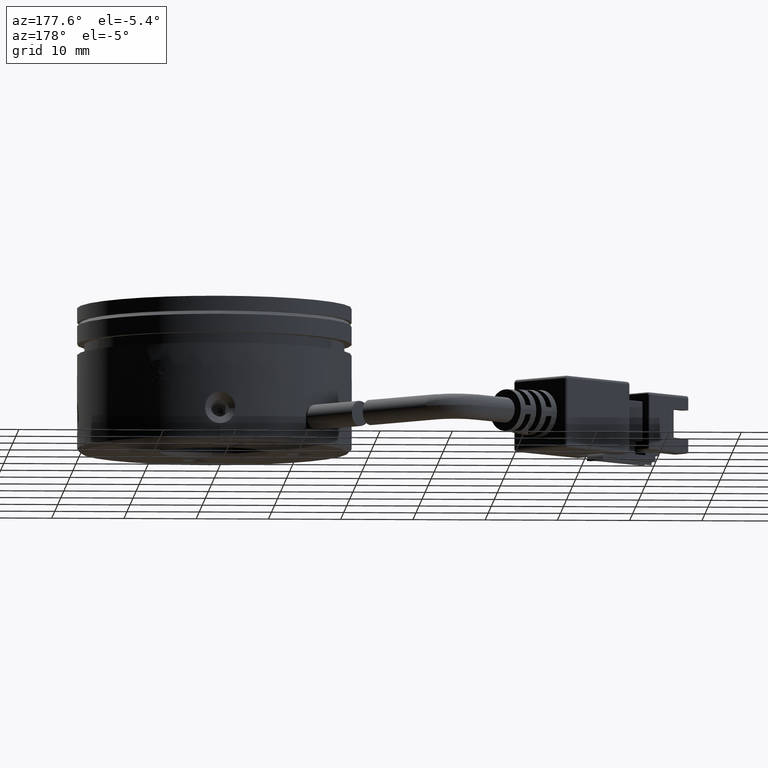
[diagram: clean part render]
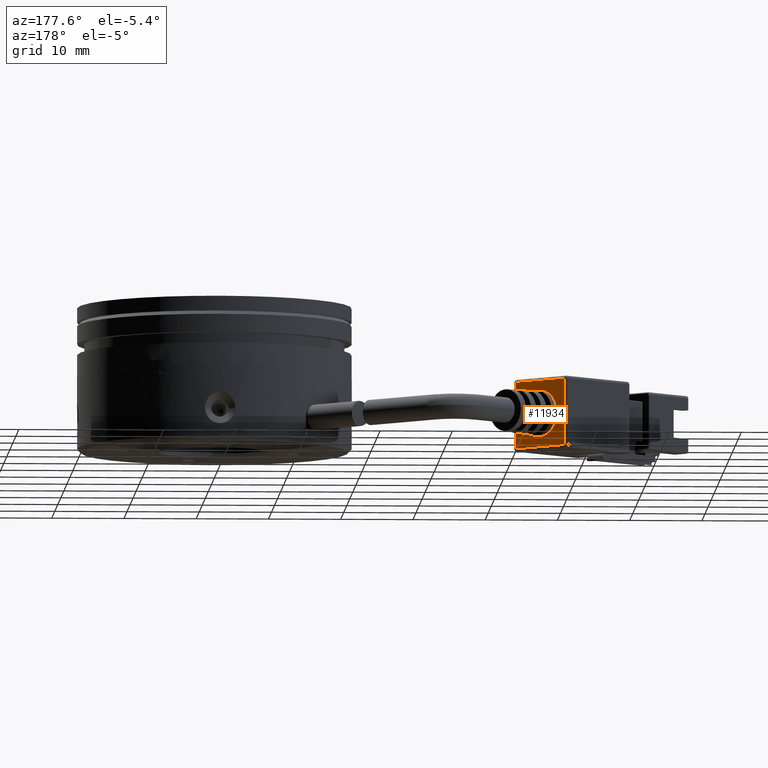
[diagram: same view with one face highlighted and labeled with its STEP entity id]
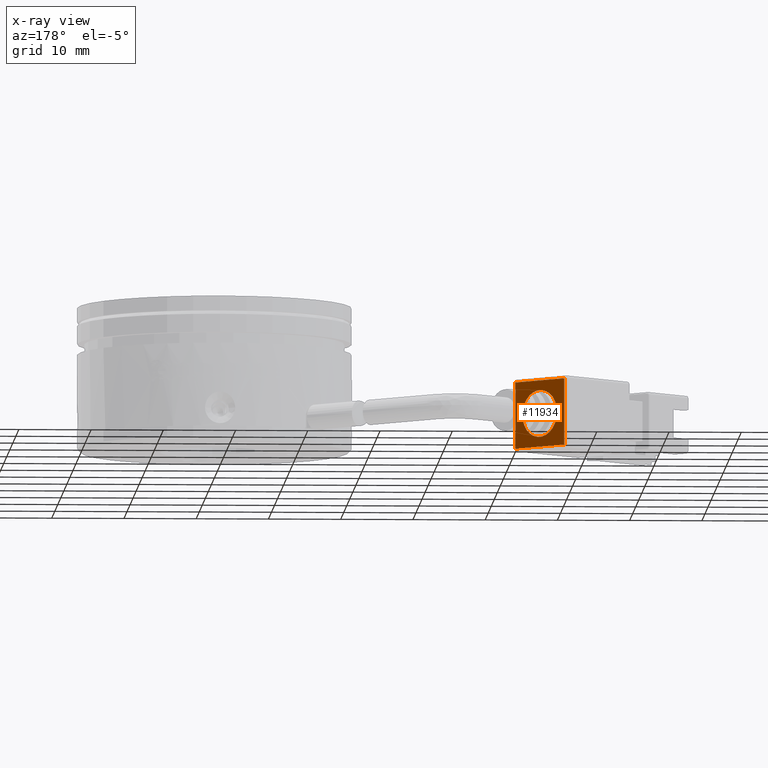
[diagram: x-ray of the same camera — body ghosted, the highlighted face saturated]
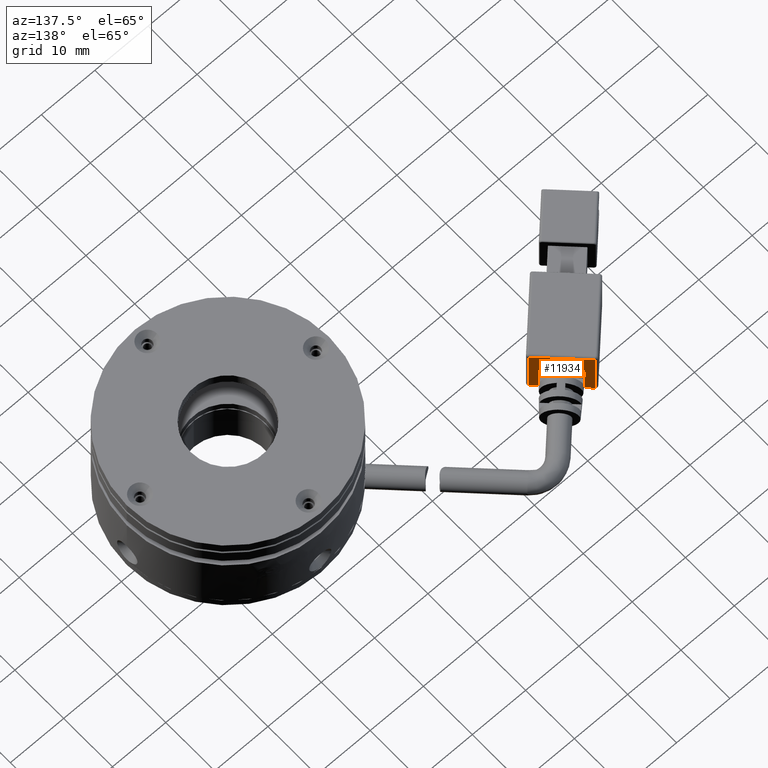
[diagram: same view with one face highlighted and labeled with its STEP entity id]
A machine part, auxiliary view. The second image highlights one B-rep face of the part: STEP entity #11934.
The next image is the same camera in x-ray: the body ghosted, the highlighted face saturated — about 0% of this face is hidden behind the body in this view.
A second angle (auxiliary view) of the same face is appended — the face is thin or edge-on in the first view.
In plain terms, the highlighted planar face has unit normal (-0.7071, -0.7071, -0).
Its self-contained STEP definition (entity closure, byte-faithful):
#1373 = EDGE_CURVE ( 'NONE', #10821, #11565, #4139, .T. ) ;
#1572 = LINE ( 'NONE', #22948, #16260 ) ;
#1639 = LINE ( 'NONE', #8032, #21391 ) ;
#2075 = DIRECTION ( 'NONE',  ( 0.7071067811865428000, 0.7071067811865522400, 1.682570589009794600E-016 ) ) ;
#2806 = VERTEX_POINT ( 'NONE', #18924 ) ;
#3271 = EDGE_CURVE ( 'NONE', #9377, #11108, #7579, .T. ) ;
#4139 = CIRCLE ( 'NONE', #13511, 3.249999999999014600 ) ;
#4960 = DIRECTION ( 'NONE',  ( -0.7071067811865522400, 0.7071067811865426900, -2.668805347657435800E-016 ) ) ;
#5595 = ORIENTED_EDGE ( 'NONE', *, *, #3271, .F. ) ;
#5958 = AXIS2_PLACEMENT_3D ( 'NONE', #13543, #2075, #15500 ) ;
#6113 = CARTESIAN_POINT ( 'NONE',  ( -40.94148263070109600, 16.89985207035823900, -10.13508365365980200 ) ) ;
#6719 = DIRECTION ( 'NONE',  ( 0.7071067811865428000, 0.7071067811865522400, 1.682570589009794600E-016 ) ) ;
#7129 = CARTESIAN_POINT ( 'NONE',  ( -44.19417382415924300, 20.15254326381634400, -5.135083653659810600 ) ) ;
#7579 = LINE ( 'NONE', #17680, #12378 ) ;
#8032 = CARTESIAN_POINT ( 'NONE',  ( -47.72970773009199500, 23.68807716974905400, -9.735083653659803100 ) ) ;
#8132 = VECTOR ( 'NONE', #11838, 1000.000000000000000 ) ;
#8750 = EDGE_CURVE ( 'NONE', #11108, #22338, #1572, .T. ) ;
#8751 = CARTESIAN_POINT ( 'NONE',  ( -46.49227086301484500, 22.45064030267191400, -5.135083653659811500 ) ) ;
#9377 = VERTEX_POINT ( 'NONE', #23250 ) ;
#9690 = CARTESIAN_POINT ( 'NONE',  ( -47.44686501761629700, 23.40523445727335200, -0.5350836536598029300 ) ) ;
#10545 = CARTESIAN_POINT ( 'NONE',  ( -47.72970773009199500, 23.68807716974905400, -10.13508365365980300 ) ) ;
#10624 = CARTESIAN_POINT ( 'NONE',  ( -47.44686501761737700, 23.40523445727443500, -9.735083653659803100 ) ) ;
#10821 = VERTEX_POINT ( 'NONE', #8751 ) ;
#11108 = VERTEX_POINT ( 'NONE', #9690 ) ;
#11516 = DIRECTION ( 'NONE',  ( 2.712282868059973800E-016, -3.327687214322150600E-017, -1.000000000000000000 ) ) ;
#11565 = VERTEX_POINT ( 'NONE', #16820 ) ;
#11586 = EDGE_LOOP ( 'NONE', ( #16656, #24569, #13197, #5595 ) ) ;
#11838 = DIRECTION ( 'NONE',  ( -2.712282868059973800E-016, 3.327687214322150600E-017, 1.000000000000000000 ) ) ;
#11934 = ADVANCED_FACE ( 'NONE', ( #14183, #19244 ), #14293, .F. ) ;
#12378 = VECTOR ( 'NONE', #17588, 1000.000000000000000 ) ;
#12417 = DIRECTION ( 'NONE',  ( -0.7071067811865522400, 0.7071067811865428000, -2.153176627992813000E-016 ) ) ;
#13197 = ORIENTED_EDGE ( 'NONE', *, *, #8750, .F. ) ;
#13511 = AXIS2_PLACEMENT_3D ( 'NONE', #7129, #6719, #4960 ) ;
#13543 = CARTESIAN_POINT ( 'NONE',  ( -44.19417382415924300, 20.15254326381634400, -5.135083653659810600 ) ) ;
#13796 = DIRECTION ( 'NONE',  ( 0.7071067811865522400, -0.7071067811865428000, 2.153176627992813000E-016 ) ) ;
#14183 = FACE_BOUND ( 'NONE', #20668, .T. ) ;
#14293 = PLANE ( 'NONE',  #20813 ) ;
#15500 = DIRECTION ( 'NONE',  ( -0.7071067811865522400, 0.7071067811865426900, -2.668805347657435800E-016 ) ) ;
#16260 = VECTOR ( 'NONE', #11516, 1000.000000000000000 ) ;
#16656 = ORIENTED_EDGE ( 'NONE', *, *, #21139, .F. ) ;
#16820 = CARTESIAN_POINT ( 'NONE',  ( -41.89607678530365600, 17.85444622496078200, -5.135083653659810600 ) ) ;
#17334 = ORIENTED_EDGE ( 'NONE', *, *, #1373, .F. ) ;
#17588 = DIRECTION ( 'NONE',  ( -0.7071067811865522400, 0.7071067811865428000, -3.020538365981216500E-016 ) ) ;
#17680 = CARTESIAN_POINT ( 'NONE',  ( -40.65863991822647700, 16.61700935788362400, -0.5350836536598003700 ) ) ;
#17704 = LINE ( 'NONE', #6113, #8132 ) ;
#18924 = CARTESIAN_POINT ( 'NONE',  ( -40.94148263070109600, 16.89985207035823900, -9.735083653659801300 ) ) ;
#19244 = FACE_OUTER_BOUND ( 'NONE', #11586, .T. ) ;
#20668 = EDGE_LOOP ( 'NONE', ( #17334, #21653 ) ) ;
#20813 = AXIS2_PLACEMENT_3D ( 'NONE', #10545, #23855, #12417 ) ;
#21100 = CIRCLE ( 'NONE', #5958, 3.249999999999014600 ) ;
#21139 = EDGE_CURVE ( 'NONE', #2806, #9377, #17704, .T. ) ;
#21391 = VECTOR ( 'NONE', #13796, 1000.000000000000000 ) ;
#21653 = ORIENTED_EDGE ( 'NONE', *, *, #23699, .F. ) ;
#22338 = VERTEX_POINT ( 'NONE', #10624 ) ;
#22948 = CARTESIAN_POINT ( 'NONE',  ( -47.44686501761737700, 23.40523445727443900, -10.13508365365980300 ) ) ;
#23250 = CARTESIAN_POINT ( 'NONE',  ( -40.94148263070109600, 16.89985207035824300, -0.5350836536598003700 ) ) ;
#23699 = EDGE_CURVE ( 'NONE', #11565, #10821, #21100, .T. ) ;
#23754 = EDGE_CURVE ( 'NONE', #22338, #2806, #1639, .T. ) ;
#23855 = DIRECTION ( 'NONE',  ( -0.7071067811865428000, -0.7071067811865522400, -1.682570589009794300E-016 ) ) ;
#24569 = ORIENTED_EDGE ( 'NONE', *, *, #23754, .F. ) ;